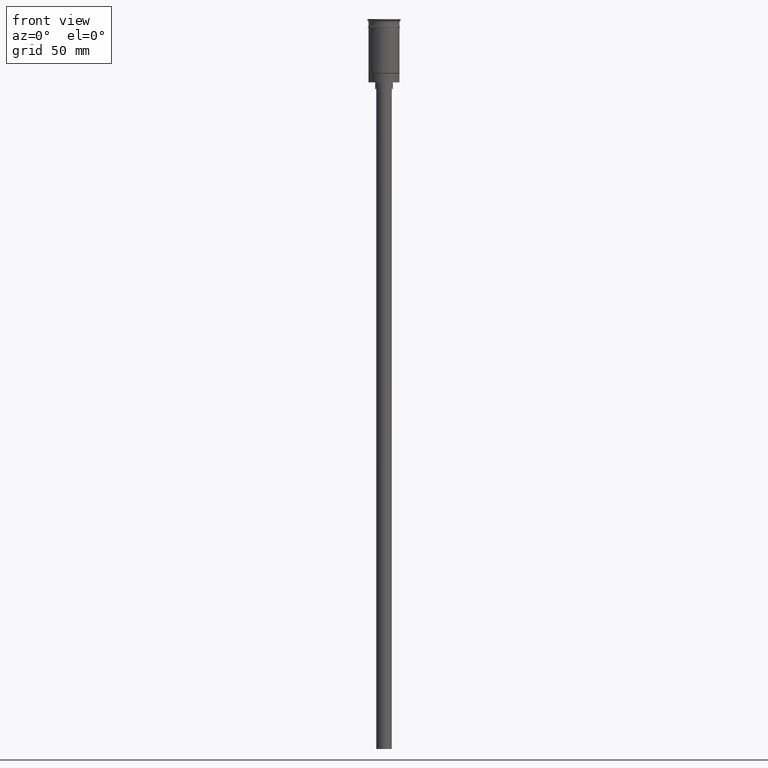
[diagram: clean part render]
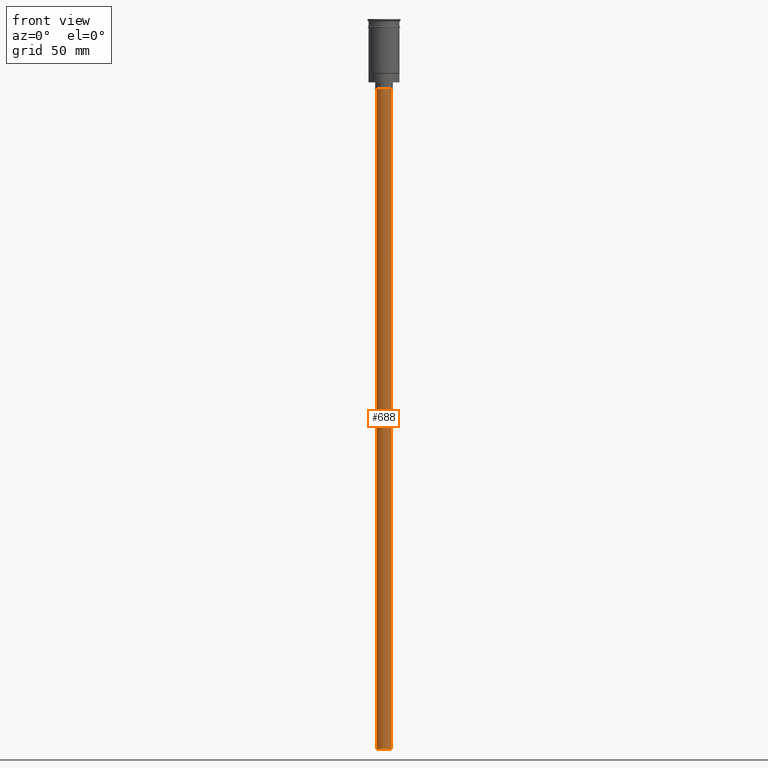
[diagram: same view with one face highlighted and labeled with its STEP entity id]
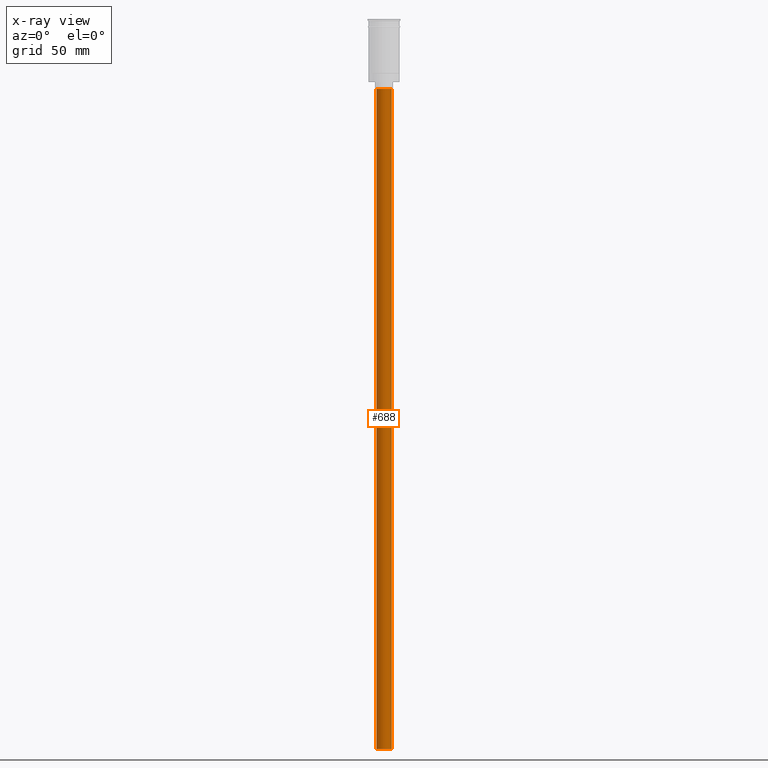
[diagram: x-ray of the same camera — body ghosted, the highlighted face saturated]
A machine part, front view. The second image highlights one B-rep face of the part: STEP entity #688.
The next image is the same camera in x-ray: the body ghosted, the highlighted face saturated — about 0% of this face is hidden behind the body in this view.
In plain terms, the highlighted cylindrical surface (edge-blend (fillet) strip) has radius 3.5 mm, axis along (-0, -0, 1).
Its self-contained STEP definition (entity closure, byte-faithful):
#18 = VERTEX_POINT ( 'NONE', #451 ) ;
#24 = CARTESIAN_POINT ( 'NONE',  ( 3.500000000000000444, 0.000000000000000000, -328.5000000000000000 ) ) ;
#28 = AXIS2_PLACEMENT_3D ( 'NONE', #343, #473, #708 ) ;
#34 = EDGE_CURVE ( 'NONE', #18, #298, #1419, .T. ) ;
#59 = CARTESIAN_POINT ( 'NONE',  ( 0.000000000000000000, 0.000000000000000000, -31.50000000000000000 ) ) ;
#180 = VERTEX_POINT ( 'NONE', #794 ) ;
#198 = CARTESIAN_POINT ( 'NONE',  ( 0.000000000000000000, 0.000000000000000000, -328.5000000000000000 ) ) ;
#298 = VERTEX_POINT ( 'NONE', #461 ) ;
#309 = DIRECTION ( 'NONE',  ( 0.000000000000000000, 0.000000000000000000, -1.000000000000000000 ) ) ;
#343 = CARTESIAN_POINT ( 'NONE',  ( 0.000000000000000000, 0.000000000000000000, -328.5000000000000000 ) ) ;
#383 = DIRECTION ( 'NONE',  ( -0.000000000000000000, -0.000000000000000000, 1.000000000000000000 ) ) ;
#388 = EDGE_CURVE ( 'NONE', #928, #180, #1579, .T. ) ;
#412 = DIRECTION ( 'NONE',  ( -0.000000000000000000, -0.000000000000000000, 1.000000000000000000 ) ) ;
#451 = CARTESIAN_POINT ( 'NONE',  ( 3.500000000000000444, 0.000000000000000000, -328.5000000000000000 ) ) ;
#457 = ORIENTED_EDGE ( 'NONE', *, *, #786, .T. ) ;
#461 = CARTESIAN_POINT ( 'NONE',  ( -3.500000000000000444, 4.286263797015737088E-16, -328.5000000000000000 ) ) ;
#473 = DIRECTION ( 'NONE',  ( -0.000000000000000000, -0.000000000000000000, 1.000000000000000000 ) ) ;
#496 = ORIENTED_EDGE ( 'NONE', *, *, #930, .F. ) ;
#556 = AXIS2_PLACEMENT_3D ( 'NONE', #198, #1436, #1229 ) ;
#583 = EDGE_LOOP ( 'NONE', ( #496, #1298, #457, #1448 ) ) ;
#591 = CARTESIAN_POINT ( 'NONE',  ( 3.500000000000000444, 0.000000000000000000, -31.50000000000000000 ) ) ;
#661 = LINE ( 'NONE', #24, #1242 ) ;
#688 = ADVANCED_FACE ( 'NONE', ( #723 ), #1217, .T. ) ;
#708 = DIRECTION ( 'NONE',  ( 1.000000000000000000, 0.000000000000000000, 0.000000000000000000 ) ) ;
#723 = FACE_OUTER_BOUND ( 'NONE', #583, .T. ) ;
#786 = EDGE_CURVE ( 'NONE', #18, #928, #661, .T. ) ;
#794 = CARTESIAN_POINT ( 'NONE',  ( -3.500000000000000444, 4.286263797015737088E-16, -31.50000000000000000 ) ) ;
#928 = VERTEX_POINT ( 'NONE', #591 ) ;
#930 = EDGE_CURVE ( 'NONE', #298, #180, #1173, .T. ) ;
#956 = DIRECTION ( 'NONE',  ( -1.000000000000000000, 0.000000000000000000, 0.000000000000000000 ) ) ;
#1173 = LINE ( 'NONE', #1410, #1582 ) ;
#1217 = CYLINDRICAL_SURFACE ( 'NONE', #28, 3.500000000000000444 ) ;
#1229 = DIRECTION ( 'NONE',  ( -1.000000000000000000, 0.000000000000000000, 0.000000000000000000 ) ) ;
#1242 = VECTOR ( 'NONE', #383, 1000.000000000000000 ) ;
#1298 = ORIENTED_EDGE ( 'NONE', *, *, #34, .F. ) ;
#1331 = AXIS2_PLACEMENT_3D ( 'NONE', #59, #309, #956 ) ;
#1410 = CARTESIAN_POINT ( 'NONE',  ( -3.500000000000000444, 4.286263797015737088E-16, -328.5000000000000000 ) ) ;
#1419 = CIRCLE ( 'NONE', #556, 3.500000000000000444 ) ;
#1436 = DIRECTION ( 'NONE',  ( 0.000000000000000000, 0.000000000000000000, -1.000000000000000000 ) ) ;
#1448 = ORIENTED_EDGE ( 'NONE', *, *, #388, .T. ) ;
#1579 = CIRCLE ( 'NONE', #1331, 3.500000000000000444 ) ;
#1582 = VECTOR ( 'NONE', #412, 1000.000000000000000 ) ;